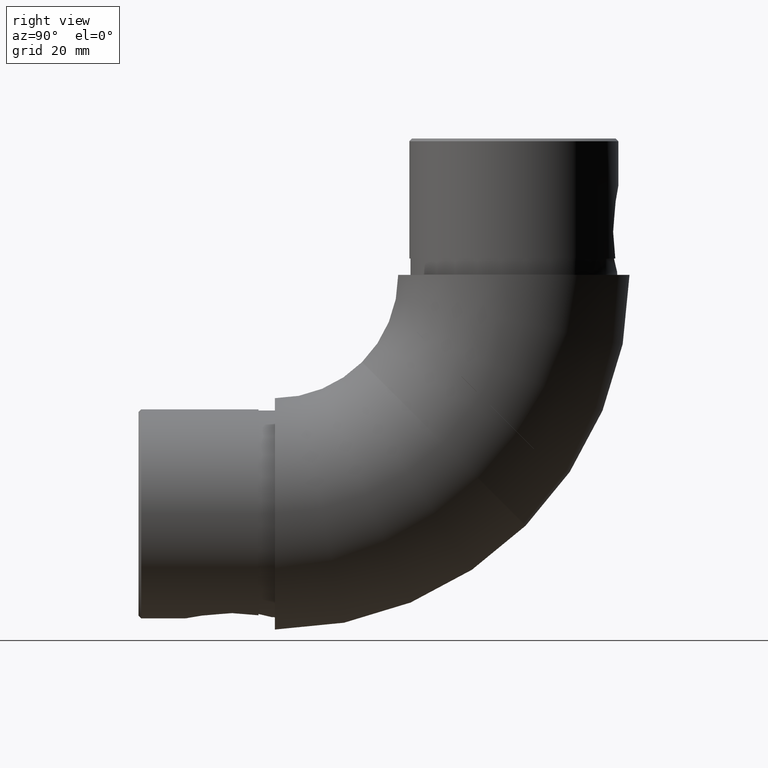
[diagram: clean part render]
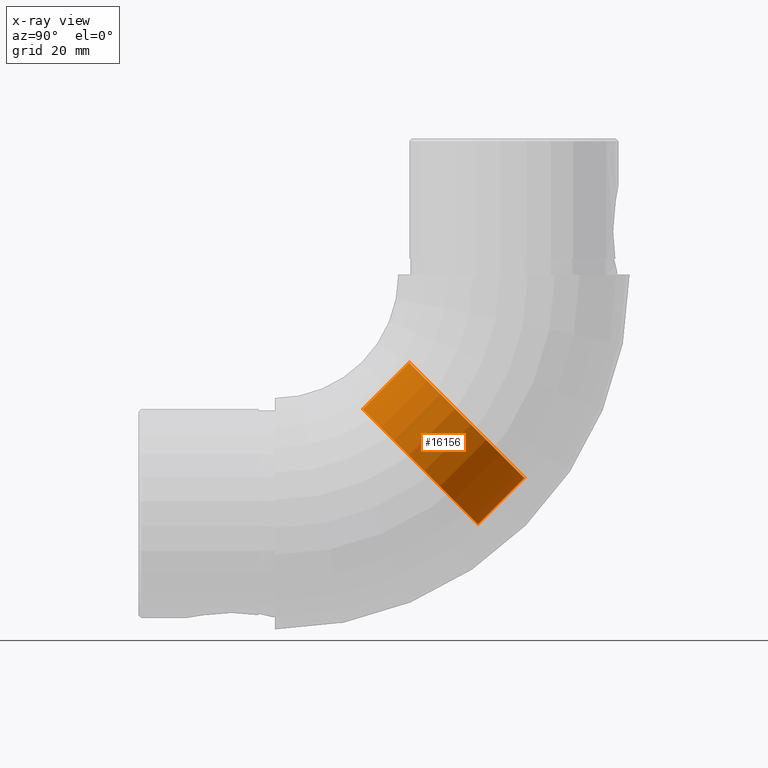
[diagram: x-ray — body ghosted, one internal face saturated and labeled with its STEP entity id]
A machine part, right view, then the same camera in x-ray: the body is ghosted and one INTERNAL B-rep face — a face not visible from any outside direction — is saturated and labeled: STEP entity #16156.
In plain terms, the highlighted cylindrical surface (bore or boss wall) has radius 15 mm, axis along (0, -0.7071, -0.7071).
Its self-contained STEP definition (entity closure, byte-faithful):
#214 = ORIENTED_EDGE ( 'NONE', *, *, #14698, .T. ) ;
#742 = FACE_OUTER_BOUND ( 'NONE', #12423, .T. ) ;
#2412 = DIRECTION ( 'NONE',  ( 0.0000000000000000000, 0.0000000000000000000, 1.000000000000000000 ) ) ;
#2468 = AXIS2_PLACEMENT_3D ( 'NONE', #6414, #8933, #2412 ) ;
#2594 = CYLINDRICAL_SURFACE ( 'NONE', #15240, 15.00000000000000000 ) ;
#3837 = CARTESIAN_POINT ( 'NONE',  ( 0.0000000000000000000, 6.000000000000026600, 15.00000000000000000 ) ) ;
#3898 = CARTESIAN_POINT ( 'NONE',  ( 0.0000000000000000000, -5.999999999999973400, 15.00000000000000000 ) ) ;
#5017 = CARTESIAN_POINT ( 'NONE',  ( 0.0000000000000000000, 6.000000000000026600, 0.0000000000000000000 ) ) ;
#6414 = CARTESIAN_POINT ( 'NONE',  ( 0.0000000000000000000, -5.999999999999973400, 0.0000000000000000000 ) ) ;
#7018 = FACE_OUTER_BOUND ( 'NONE', #14206, .T. ) ;
#7916 = CARTESIAN_POINT ( 'NONE',  ( 0.0000000000000000000, 6.500000000000000000, 0.0000000000000000000 ) ) ;
#8071 = CIRCLE ( 'NONE', #2468, 15.00000000000000000 ) ;
#8308 = VERTEX_POINT ( 'NONE', #3837 ) ;
#8933 = DIRECTION ( 'NONE',  ( -0.0000000000000000000, 1.000000000000000000, -0.0000000000000000000 ) ) ;
#11026 = ORIENTED_EDGE ( 'NONE', *, *, #15096, .T. ) ;
#11906 = DIRECTION ( 'NONE',  ( -0.0000000000000000000, -1.000000000000000000, -0.0000000000000000000 ) ) ;
#12423 = EDGE_LOOP ( 'NONE', ( #11026 ) ) ;
#13015 = DIRECTION ( 'NONE',  ( 0.0000000000000000000, -1.000000000000000000, 0.0000000000000000000 ) ) ;
#13041 = AXIS2_PLACEMENT_3D ( 'NONE', #5017, #13015, #15809 ) ;
#13331 = CIRCLE ( 'NONE', #13041, 15.00000000000000000 ) ;
#14206 = EDGE_LOOP ( 'NONE', ( #214 ) ) ;
#14698 = EDGE_CURVE ( 'NONE', #8308, #8308, #13331, .T. ) ;
#15096 = EDGE_CURVE ( 'NONE', #16482, #16482, #8071, .T. ) ;
#15240 = AXIS2_PLACEMENT_3D ( 'NONE', #7916, #11906, #16050 ) ;
#15809 = DIRECTION ( 'NONE',  ( 0.0000000000000000000, 0.0000000000000000000, 1.000000000000000000 ) ) ;
#16050 = DIRECTION ( 'NONE',  ( 0.0000000000000000000, 0.0000000000000000000, -1.000000000000000000 ) ) ;
#16156 = ADVANCED_FACE ( 'NONE', ( #742, #7018 ), #2594, .T. ) ;
#16482 = VERTEX_POINT ( 'NONE', #3898 ) ;